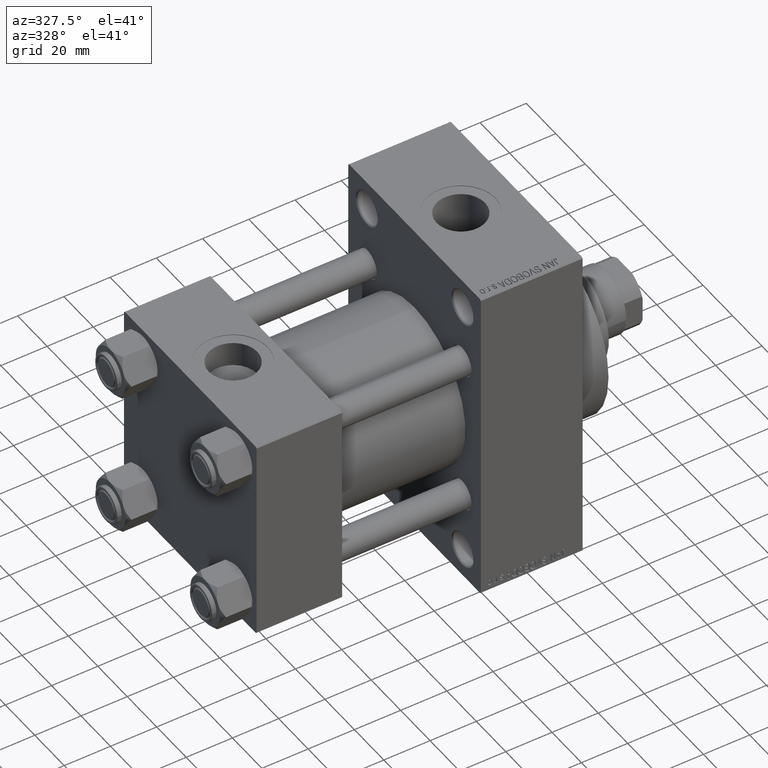
[diagram: clean part render]
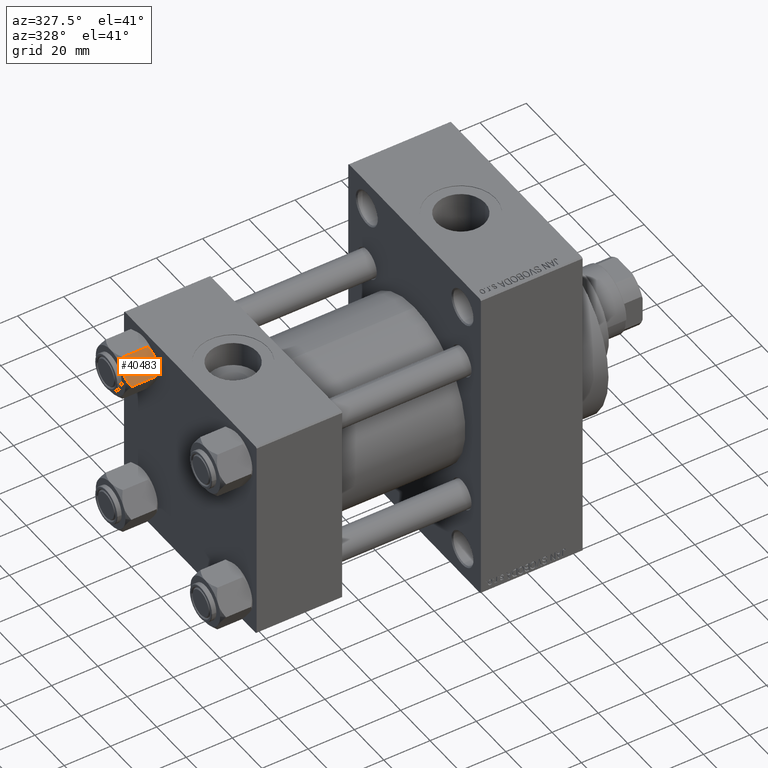
[diagram: same view with one face highlighted and labeled with its STEP entity id]
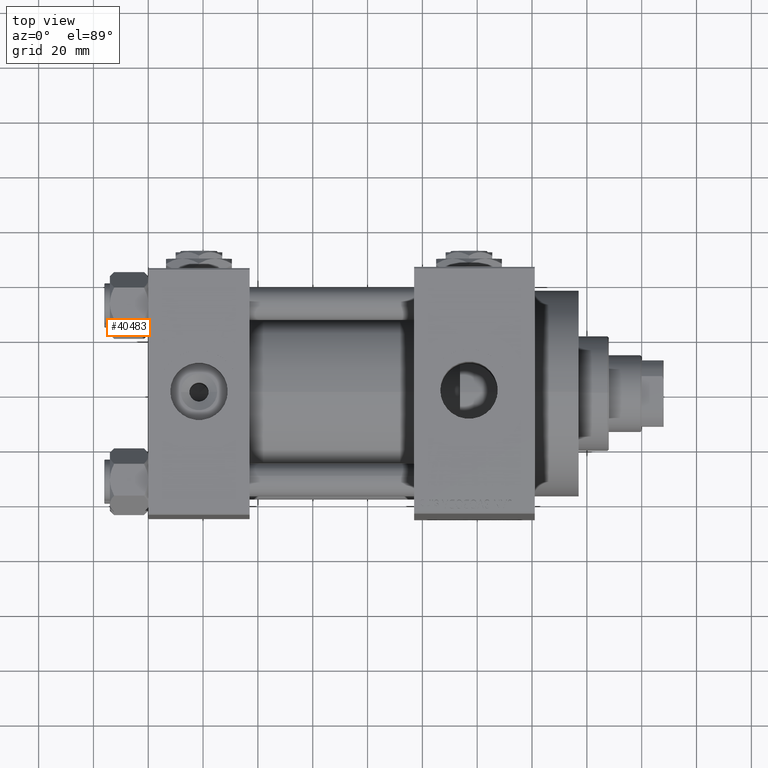
[diagram: same view with one face highlighted and labeled with its STEP entity id]
A machine part, auxiliary view. The second image highlights one B-rep face of the part: STEP entity #40483.
A second angle (top view) of the same face is appended — the face is thin or edge-on in the first view.
In plain terms, the highlighted planar face has unit normal (0, 0.866, -0.5).
Its self-contained STEP definition (entity closure, byte-faithful):
#736 = CARTESIAN_POINT ( 'NONE',  ( -8.209704053696567527, -5.906805847843720869, 6.159623592433269699E-15 ) ) ;
#2000 = EDGE_CURVE ( 'NONE', #7995, #48760, #4888, .T. ) ;
#2194 = PLANE ( 'NONE',  #2874 ) ;
#2874 = AXIS2_PLACEMENT_3D ( 'NONE', #13165, #46817, #43087 ) ;
#3777 = EDGE_CURVE ( 'NONE', #24463, #22108, #19705, .T. ) ;
#3896 = CARTESIAN_POINT ( 'NONE',  ( -6.265545725125283738, -9.274186850887380373, -12.89876091710046779 ) ) ;
#4888 = LINE ( 'NONE', #31079, #12861 ) ;
#6060 = VERTEX_POINT ( 'NONE', #39243 ) ;
#6113 = CARTESIAN_POINT ( 'NONE',  ( -8.715000000000006963, -5.031607595987586556, -14.00000000000000000 ) ) ;
#7559 = CARTESIAN_POINT ( 'NONE',  ( -5.810000000000000497, -10.06321519197517844, -12.44321519197518633 ) ) ;
#7631 = CARTESIAN_POINT ( 'NONE',  ( -8.715000000000006963, -5.031607595987586556, -14.00000000000000000 ) ) ;
#7995 = VERTEX_POINT ( 'NONE', #9412 ) ;
#8115 = CARTESIAN_POINT ( 'NONE',  ( -9.729165168613654657, -3.275021996682076608, -0.1903979688073365595 ) ) ;
#8357 = CARTESIAN_POINT ( 'NONE',  ( -9.227666995912100489, -4.143642311704120118, -0.03994118060690279165 ) ) ;
#9101 = CARTESIAN_POINT ( 'NONE',  ( -9.220295946303428636, -4.156409344131446026, -14.00000000000000711 ) ) ;
#9412 = CARTESIAN_POINT ( 'NONE',  ( -11.61999999999999922, 6.270720075510426383E-15, -12.44321519197518988 ) ) ;
#10641 = CARTESIAN_POINT ( 'NONE',  ( -7.455303369716809847, -7.213466161761383333, -13.69973261901326644 ) ) ;
#11848 = CARTESIAN_POINT ( 'NONE',  ( -9.974696630283190757, -2.849749030213787115, -0.3002673809867329457 ) ) ;
#12269 = CARTESIAN_POINT ( 'NONE',  ( -8.715000000000006963, -5.031607595987586556, 0.000000000000000000 ) ) ;
#12861 = VECTOR ( 'NONE', #35054, 1000.000000000000000 ) ;
#13165 = CARTESIAN_POINT ( 'NONE',  ( -5.810000000000000497, -10.06321519197517844, -14.00000000000000000 ) ) ;
#13923 = ORIENTED_EDGE ( 'NONE', *, *, #13993, .T. ) ;
#13993 = EDGE_CURVE ( 'NONE', #17942, #22108, #39095, .T. ) ;
#14636 = CARTESIAN_POINT ( 'NONE',  ( -7.700834831386346835, -6.788193195293090731, -13.80960203119266438 ) ) ;
#15137 = CARTESIAN_POINT ( 'NONE',  ( -6.731401448974989599, -8.467301068182909063, -13.28585617404753272 ) ) ;
#15534 = EDGE_LOOP ( 'NONE', ( #26159, #13923, #48539, #47553, #45087, #27222 ) ) ;
#16856 = CARTESIAN_POINT ( 'NONE',  ( -10.69662495661650148, -1.599332489581326344, -13.28854452935655317 ) ) ;
#17312 = CARTESIAN_POINT ( 'NONE',  ( -11.61999999999999922, 6.270720075409452187E-15, -1.556784808024810562 ) ) ;
#17942 = VERTEX_POINT ( 'NONE', #7559 ) ;
#18589 = EDGE_CURVE ( 'NONE', #6060, #7995, #31607, .T. ) ;
#19209 = CARTESIAN_POINT ( 'NONE',  ( -6.265018354709776638, -9.275100283241451748, -1.101766453314952043 ) ) ;
#19705 = B_SPLINE_CURVE_WITH_KNOTS ( 'NONE', 3,
 ( #27158, #736, #37898, #26427, #19209, #30653 ),
 .UNSPECIFIED., .F., .F.,
 ( 4, 2, 4 ),
 ( 0.006022845781655586372, 0.009013049135303635023, 0.01200325248895168367 ),
 .UNSPECIFIED. ) ;
#22108 = VERTEX_POINT ( 'NONE', #25579 ) ;
#24463 = VERTEX_POINT ( 'NONE', #12269 ) ;
#25579 = CARTESIAN_POINT ( 'NONE',  ( -5.810000000000000497, -10.06321519197517844, -1.556784808024813893 ) ) ;
#26091 = CARTESIAN_POINT ( 'NONE',  ( -8.460569896449619876, -5.472293462311856871, -14.00000000000000888 ) ) ;
#26159 = ORIENTED_EDGE ( 'NONE', *, *, #39519, .F. ) ;
#26427 = CARTESIAN_POINT ( 'NONE',  ( -6.733375043383495573, -8.463882702393842550, -0.7114554706434480513 ) ) ;
#27158 = CARTESIAN_POINT ( 'NONE',  ( -8.715000000000006963, -5.031607595987586556, 0.000000000000000000 ) ) ;
#27222 = ORIENTED_EDGE ( 'NONE', *, *, #18589, .F. ) ;
#27298 = CARTESIAN_POINT ( 'NONE',  ( -8.715000000000006963, -5.031607595987586556, 0.000000000000000000 ) ) ;
#27679 = B_SPLINE_CURVE_WITH_KNOTS ( 'NONE', 3,
 ( #31047, #46001, #30796, #11848, #8115, #8357, #38528, #27298 ),
 .UNSPECIFIED., .F., .F.,
 ( 4, 2, 2, 4 ),
 ( 2.544312114893457383E-07, 0.003011550106433538623, 0.004517197944044561847, 0.006022845781655586372 ),
 .UNSPECIFIED. ) ;
#30075 = CARTESIAN_POINT ( 'NONE',  ( -8.202333004087902779, -5.919572880271047666, -13.96005881939309745 ) ) ;
#30653 = CARTESIAN_POINT ( 'NONE',  ( -5.810000000000000497, -10.06321519197517844, -1.556784808024813893 ) ) ;
#30796 = CARTESIAN_POINT ( 'NONE',  ( -10.69859855102500923, -1.595914123792257611, -0.7141438259524607313 ) ) ;
#31047 = CARTESIAN_POINT ( 'NONE',  ( -11.61999999999999922, 6.270720075409452187E-15, -1.556784808024810562 ) ) ;
#31079 = CARTESIAN_POINT ( 'NONE',  ( -11.61999999999999922, 6.288644352490894150E-15, -14.00000000000000000 ) ) ;
#31607 = B_SPLINE_CURVE_WITH_KNOTS ( 'NONE', 3,
 ( #6113, #9101, #39769, #16856, #39520, #44240 ),
 .UNSPECIFIED., .F., .F.,
 ( 4, 2, 4 ),
 ( 0.006022845781655596781, 0.009013049135303641962, 0.01200325248895168714 ),
 .UNSPECIFIED. ) ;
#31612 = FACE_OUTER_BOUND ( 'NONE', #15534, .T. ) ;
#34123 = CARTESIAN_POINT ( 'NONE',  ( -5.810000000000000497, -10.06321519197517844, -14.00000000000000000 ) ) ;
#34894 = EDGE_CURVE ( 'NONE', #48760, #24463, #27679, .T. ) ;
#35054 = DIRECTION ( 'NONE',  ( -0.000000000000000000, -0.000000000000000000, 1.000000000000000000 ) ) ;
#37898 = CARTESIAN_POINT ( 'NONE',  ( -7.713000053756304375, -6.767122412062951398, -0.1545239700039803266 ) ) ;
#38528 = CARTESIAN_POINT ( 'NONE',  ( -8.969430103550386946, -4.590921729663310025, 6.662949392646161370E-15 ) ) ;
#39095 = LINE ( 'NONE', #34123, #41099 ) ;
#39243 = CARTESIAN_POINT ( 'NONE',  ( -8.715000000000006963, -5.031607595987586556, -14.00000000000000000 ) ) ;
#39519 = EDGE_CURVE ( 'NONE', #17942, #6060, #44697, .T. ) ;
#39520 = CARTESIAN_POINT ( 'NONE',  ( -11.16498164529022219, -0.7881149087337223635, -12.89823354668505040 ) ) ;
#39769 = CARTESIAN_POINT ( 'NONE',  ( -9.716999946243698005, -3.296092779912219939, -13.84547602999602667 ) ) ;
#40483 = ADVANCED_FACE ( 'NONE', ( #31612 ), #2194, .F. ) ;
#41099 = VECTOR ( 'NONE', #49326, 1000.000000000000000 ) ;
#43087 = DIRECTION ( 'NONE',  ( -0.4999999999999994449, 0.8660254037844389297, 0.000000000000000000 ) ) ;
#44240 = CARTESIAN_POINT ( 'NONE',  ( -11.61999999999999922, 6.270720075510426383E-15, -12.44321519197518988 ) ) ;
#44697 = B_SPLINE_CURVE_WITH_KNOTS ( 'NONE', 3,
 ( #49015, #3896, #15137, #10641, #14636, #30075, #26091, #7631 ),
 .UNSPECIFIED., .F., .F.,
 ( 4, 2, 2, 4 ),
 ( 2.544312114906334931E-07, 0.003011550106433543393, 0.004517197944044570521, 0.006022845781655596781 ),
 .UNSPECIFIED. ) ;
#45087 = ORIENTED_EDGE ( 'NONE', *, *, #2000, .F. ) ;
#46001 = CARTESIAN_POINT ( 'NONE',  ( -11.16445427487471420, -0.7890283410877914072, -1.101239082899528432 ) ) ;
#46817 = DIRECTION ( 'NONE',  ( 0.8660254037844390407, 0.4999999999999995004, 0.000000000000000000 ) ) ;
#47553 = ORIENTED_EDGE ( 'NONE', *, *, #34894, .F. ) ;
#48539 = ORIENTED_EDGE ( 'NONE', *, *, #3777, .F. ) ;
#48760 = VERTEX_POINT ( 'NONE', #17312 ) ;
#49015 = CARTESIAN_POINT ( 'NONE',  ( -5.810000000000000497, -10.06321519197517844, -12.44321519197518633 ) ) ;
#49326 = DIRECTION ( 'NONE',  ( -0.000000000000000000, -0.000000000000000000, 1.000000000000000000 ) ) ;